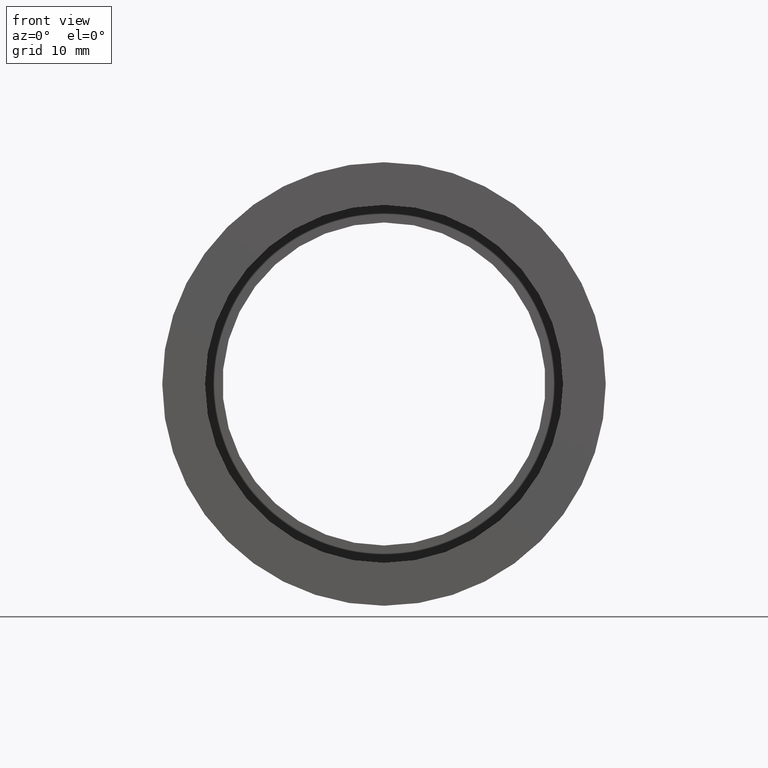
[diagram: clean part render]
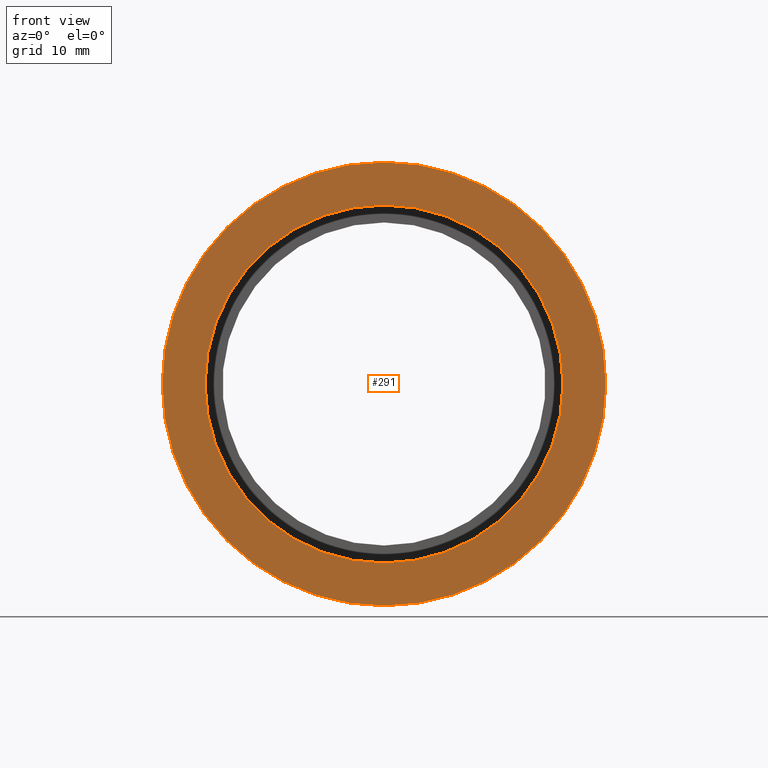
[diagram: same view with one face highlighted and labeled with its STEP entity id]
A machine part, front view. The second image highlights one B-rep face of the part: STEP entity #291.
In plain terms, the highlighted planar face has unit normal (-0, 1, 0).
Its self-contained STEP definition (entity closure, byte-faithful):
#13 = AXIS2_PLACEMENT_3D ( 'NONE', #422, #89, #368 ) ;
#24 = CARTESIAN_POINT ( 'NONE',  ( 0.0000000000000000000, -2.775557561562891400E-014, 0.0000000000000000000 ) ) ;
#35 = AXIS2_PLACEMENT_3D ( 'NONE', #37, #533, #235 ) ;
#37 = CARTESIAN_POINT ( 'NONE',  ( 0.0000000000000000000, -2.775557561562891400E-014, 0.0000000000000000000 ) ) ;
#50 = AXIS2_PLACEMENT_3D ( 'NONE', #597, #383, #99 ) ;
#89 = DIRECTION ( 'NONE',  ( -0.0000000000000000000, 1.000000000000000000, -0.0000000000000000000 ) ) ;
#93 = ORIENTED_EDGE ( 'NONE', *, *, #516, .T. ) ;
#99 = DIRECTION ( 'NONE',  ( 0.0000000000000000000, 0.0000000000000000000, 1.000000000000000000 ) ) ;
#101 = ORIENTED_EDGE ( 'NONE', *, *, #601, .T. ) ;
#103 = FACE_BOUND ( 'NONE', #170, .T. ) ;
#111 = ORIENTED_EDGE ( 'NONE', *, *, #540, .F. ) ;
#154 = CIRCLE ( 'NONE', #433, 20.50000000000002100 ) ;
#158 = CARTESIAN_POINT ( 'NONE',  ( 0.0000000000000000000, -2.775557561562891400E-014, 25.40000000000002000 ) ) ;
#170 = EDGE_LOOP ( 'NONE', ( #93, #101 ) ) ;
#193 = PLANE ( 'NONE',  #50 ) ;
#219 = DIRECTION ( 'NONE',  ( 0.0000000000000000000, 0.0000000000000000000, 1.000000000000000000 ) ) ;
#220 = VERTEX_POINT ( 'NONE', #539 ) ;
#235 = DIRECTION ( 'NONE',  ( 0.0000000000000000000, 0.0000000000000000000, 1.000000000000000000 ) ) ;
#267 = DIRECTION ( 'NONE',  ( -0.0000000000000000000, 1.000000000000000000, -0.0000000000000000000 ) ) ;
#291 = ADVANCED_FACE ( 'NONE', ( #614, #103 ), #193, .F. ) ;
#368 = DIRECTION ( 'NONE',  ( 0.0000000000000000000, 0.0000000000000000000, 1.000000000000000000 ) ) ;
#378 = VERTEX_POINT ( 'NONE', #455 ) ;
#383 = DIRECTION ( 'NONE',  ( -0.0000000000000000000, 1.000000000000000000, 0.0000000000000000000 ) ) ;
#387 = EDGE_CURVE ( 'NONE', #220, #446, #558, .T. ) ;
#396 = CARTESIAN_POINT ( 'NONE',  ( 0.0000000000000000000, -2.775557561562891400E-014, 0.0000000000000000000 ) ) ;
#422 = CARTESIAN_POINT ( 'NONE',  ( 0.0000000000000000000, -2.775557561562891400E-014, 0.0000000000000000000 ) ) ;
#433 = AXIS2_PLACEMENT_3D ( 'NONE', #24, #267, #219 ) ;
#446 = VERTEX_POINT ( 'NONE', #158 ) ;
#449 = CIRCLE ( 'NONE', #35, 25.40000000000002000 ) ;
#455 = CARTESIAN_POINT ( 'NONE',  ( 2.510525938252076500E-015, -2.775557561562891400E-014, -20.50000000000002100 ) ) ;
#516 = EDGE_CURVE ( 'NONE', #600, #378, #154, .T. ) ;
#533 = DIRECTION ( 'NONE',  ( -0.0000000000000000000, 1.000000000000000000, -0.0000000000000000000 ) ) ;
#539 = CARTESIAN_POINT ( 'NONE',  ( 3.110602869834279600E-015, -2.775557561562891400E-014, -25.40000000000002300 ) ) ;
#540 = EDGE_CURVE ( 'NONE', #446, #220, #449, .T. ) ;
#553 = DIRECTION ( 'NONE',  ( 0.0000000000000000000, 0.0000000000000000000, 1.000000000000000000 ) ) ;
#555 = DIRECTION ( 'NONE',  ( -0.0000000000000000000, 1.000000000000000000, -0.0000000000000000000 ) ) ;
#557 = AXIS2_PLACEMENT_3D ( 'NONE', #396, #555, #553 ) ;
#558 = CIRCLE ( 'NONE', #557, 25.40000000000002000 ) ;
#559 = CIRCLE ( 'NONE', #13, 20.50000000000002100 ) ;
#573 = CARTESIAN_POINT ( 'NONE',  ( 0.0000000000000000000, -2.775557561562891400E-014, 20.50000000000002100 ) ) ;
#574 = EDGE_LOOP ( 'NONE', ( #111, #599 ) ) ;
#597 = CARTESIAN_POINT ( 'NONE',  ( 25.40000000000002000, -1.454715626710879400E-014, 0.0000000000000000000 ) ) ;
#599 = ORIENTED_EDGE ( 'NONE', *, *, #387, .F. ) ;
#600 = VERTEX_POINT ( 'NONE', #573 ) ;
#601 = EDGE_CURVE ( 'NONE', #378, #600, #559, .T. ) ;
#614 = FACE_OUTER_BOUND ( 'NONE', #574, .T. ) ;